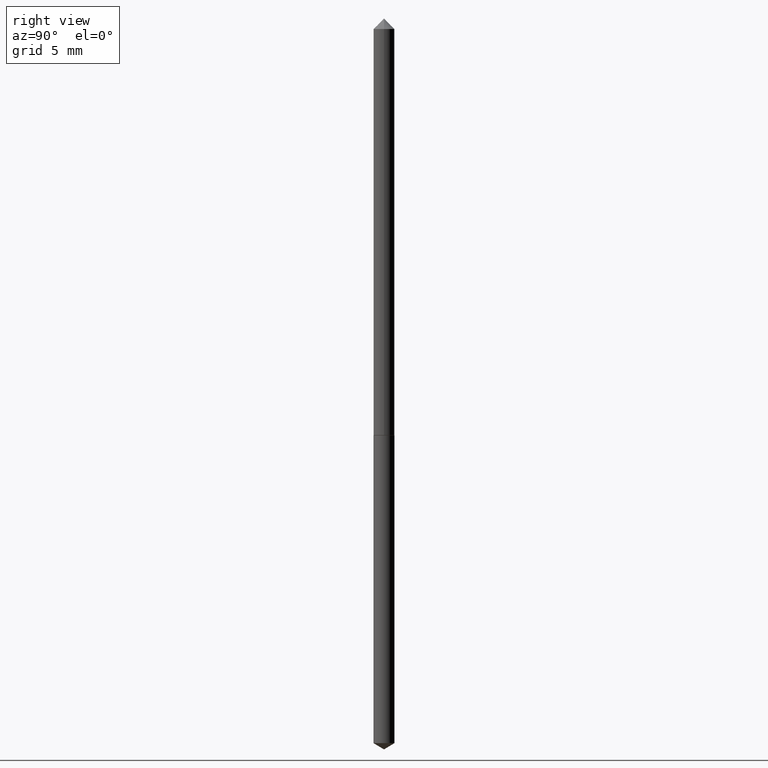
[diagram: clean part render]
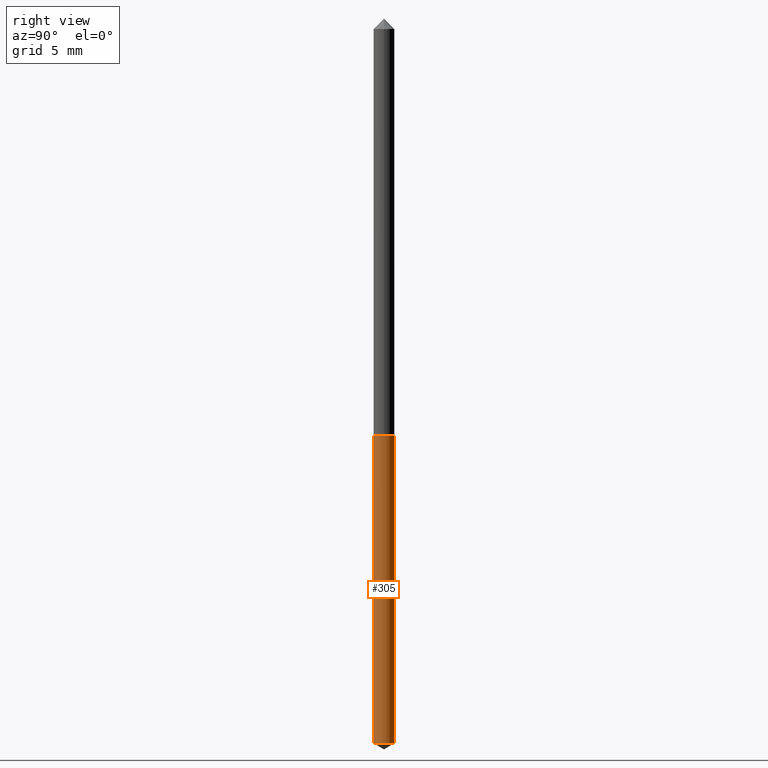
[diagram: same view with one face highlighted and labeled with its STEP entity id]
A machine part, right view. The second image highlights one B-rep face of the part: STEP entity #305.
In plain terms, the highlighted cylindrical surface (edge-blend (fillet) strip) has radius 0.4953 mm, axis along (-0, 0, 1).
Its self-contained STEP definition (entity closure, byte-faithful):
#1 = CARTESIAN_POINT ( 'NONE',  ( -1.361677722148628817E-16, -0.01950000000000275124, -0.7889999999999999236 ) ) ;
#7 = DIRECTION ( 'NONE',  ( -2.445437279729985501E-29, 3.491526486521295773E-15, 1.000000000000000000 ) ) ;
#10 = CYLINDRICAL_SURFACE ( 'NONE', #319, 0.01949999999999999997 ) ;
#32 = DIRECTION ( 'NONE',  ( -2.445437279729985781E-29, 3.491526486521295773E-15, 1.000000000000000000 ) ) ;
#53 = DIRECTION ( 'NONE',  ( -2.445437279729985781E-29, 3.491526486521295773E-15, 1.000000000000000000 ) ) ;
#59 = VERTEX_POINT ( 'NONE', #188 ) ;
#70 = LINE ( 'NONE', #160, #127 ) ;
#72 = ORIENTED_EDGE ( 'NONE', *, *, #142, .T. ) ;
#75 = CARTESIAN_POINT ( 'NONE',  ( 1.929474888080072746E-29, -2.754778776347241889E-15, -0.7889999999999999236 ) ) ;
#98 = DIRECTION ( 'NONE',  ( -2.445437279729985501E-29, 3.491526486521295773E-15, 1.000000000000000000 ) ) ;
#125 = EDGE_CURVE ( 'NONE', #341, #59, #291, .T. ) ;
#126 = VECTOR ( 'NONE', #7, 39.37007874015748143 ) ;
#127 = VECTOR ( 'NONE', #98, 39.37007874015748143 ) ;
#133 = CARTESIAN_POINT ( 'NONE',  ( -1.361677722148488301E-16, -0.01950000000000476352, -1.363283217928962454 ) ) ;
#142 = EDGE_CURVE ( 'NONE', #59, #275, #231, .T. ) ;
#160 = CARTESIAN_POINT ( 'NONE',  ( -1.361677722148628817E-16, -0.01950000000000275124, -0.7889999999999999236 ) ) ;
#162 = EDGE_LOOP ( 'NONE', ( #208, #72, #222, #266 ) ) ;
#177 = AXIS2_PLACEMENT_3D ( 'NONE', #75, #53, #311 ) ;
#188 = CARTESIAN_POINT ( 'NONE',  ( 1.385558334732528161E-16, 0.01949999999999523989, -1.363283217928962454 ) ) ;
#201 = CARTESIAN_POINT ( 'NONE',  ( 1.929474888080072746E-29, -2.754778776347241889E-15, -0.7889999999999999236 ) ) ;
#208 = ORIENTED_EDGE ( 'NONE', *, *, #125, .T. ) ;
#222 = ORIENTED_EDGE ( 'NONE', *, *, #346, .F. ) ;
#231 = LINE ( 'NONE', #313, #126 ) ;
#262 = EDGE_CURVE ( 'NONE', #341, #333, #70, .T. ) ;
#263 = CARTESIAN_POINT ( 'NONE',  ( 3.333848478326857315E-29, -4.759903842510895348E-15, -1.363283217928962454 ) ) ;
#265 = DIRECTION ( 'NONE',  ( -6.982962677686264344E-15, -1.000000000000000000, 0.000000000000000000 ) ) ;
#266 = ORIENTED_EDGE ( 'NONE', *, *, #262, .F. ) ;
#269 = CIRCLE ( 'NONE', #177, 0.01949999999999999997 ) ;
#275 = VERTEX_POINT ( 'NONE', #360 ) ;
#285 = AXIS2_PLACEMENT_3D ( 'NONE', #263, #32, #318 ) ;
#291 = CIRCLE ( 'NONE', #285, 0.01949999999999999997 ) ;
#305 = ADVANCED_FACE ( 'NONE', ( #314 ), #10, .T. ) ;
#311 = DIRECTION ( 'NONE',  ( -6.982962677686264344E-15, -1.000000000000000000, 0.000000000000000000 ) ) ;
#313 = CARTESIAN_POINT ( 'NONE',  ( 1.385558334732387892E-16, 0.01949999999999724523, -0.7889999999999999236 ) ) ;
#314 = FACE_OUTER_BOUND ( 'NONE', #162, .T. ) ;
#318 = DIRECTION ( 'NONE',  ( -6.982962677686264344E-15, -1.000000000000000000, 0.000000000000000000 ) ) ;
#319 = AXIS2_PLACEMENT_3D ( 'NONE', #201, #351, #265 ) ;
#333 = VERTEX_POINT ( 'NONE', #1 ) ;
#341 = VERTEX_POINT ( 'NONE', #133 ) ;
#346 = EDGE_CURVE ( 'NONE', #333, #275, #269, .T. ) ;
#351 = DIRECTION ( 'NONE',  ( -2.445437279729985781E-29, 3.491526486521295773E-15, 1.000000000000000000 ) ) ;
#360 = CARTESIAN_POINT ( 'NONE',  ( 1.385558334732529147E-16, 0.01949999999999724523, -0.7889999999999999236 ) ) ;